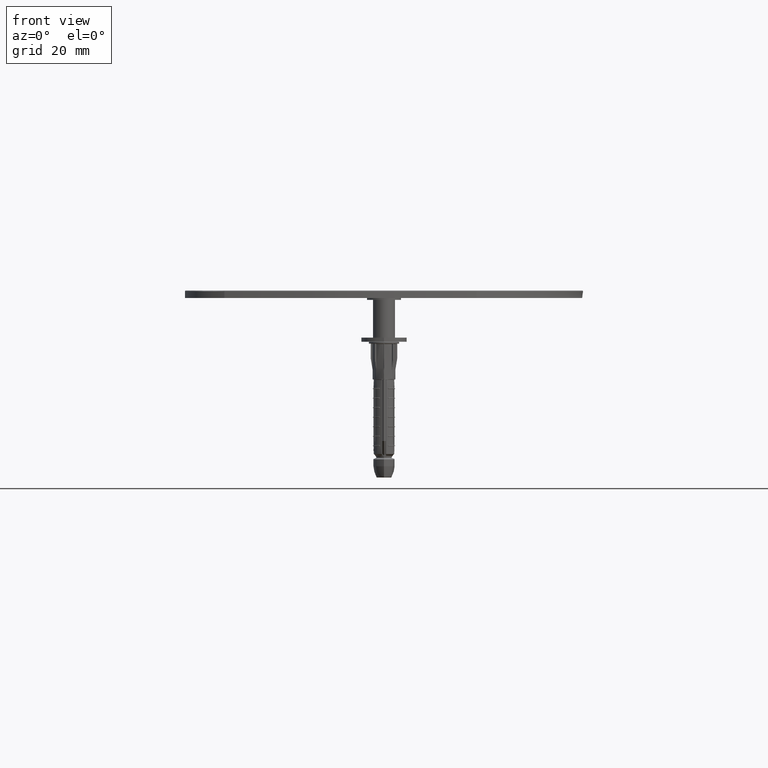
[diagram: clean part render]
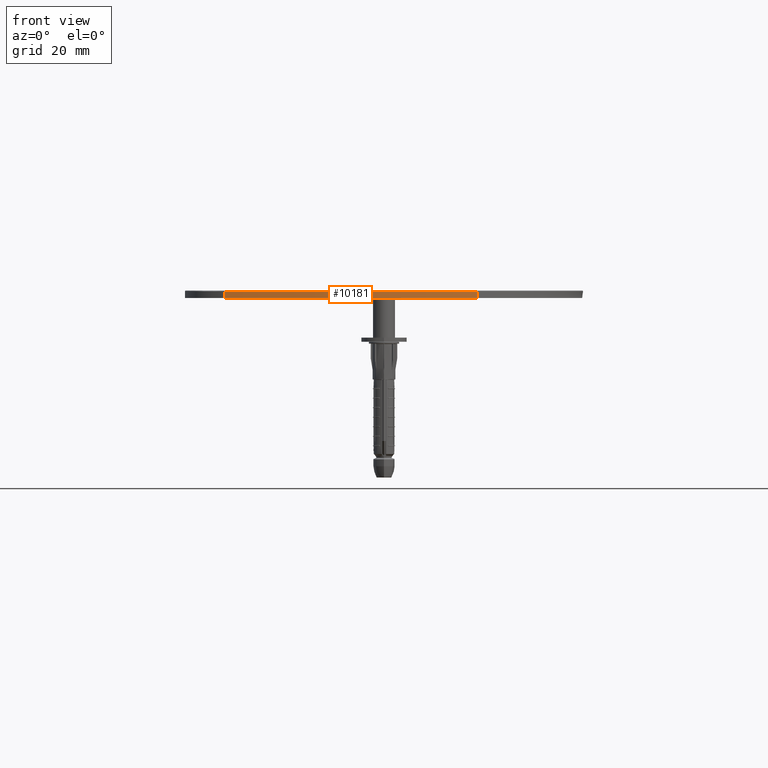
[diagram: same view with one face highlighted and labeled with its STEP entity id]
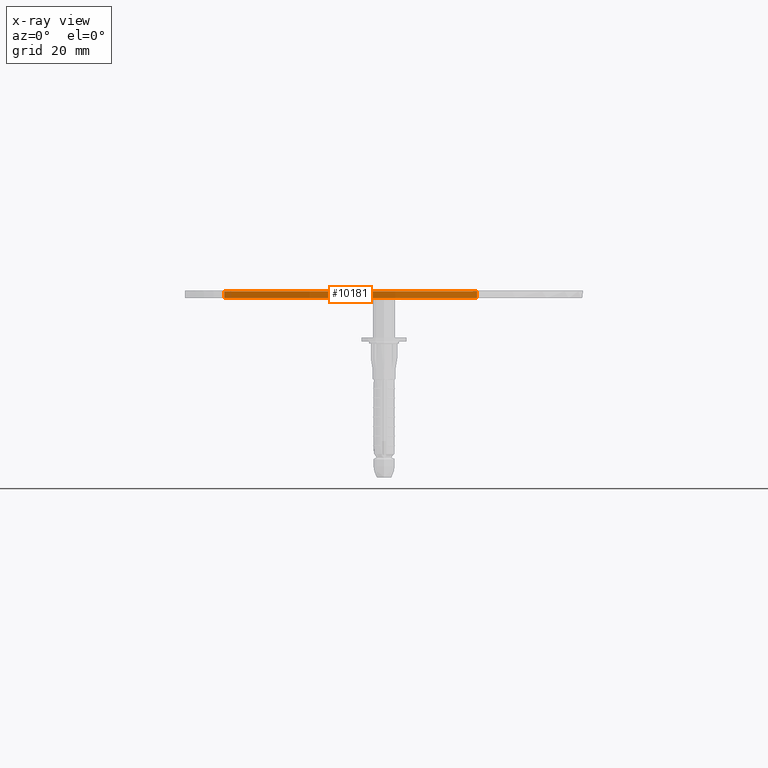
[diagram: x-ray of the same camera — body ghosted, the highlighted face saturated]
A machine part, front view. The second image highlights one B-rep face of the part: STEP entity #10181.
The next image is the same camera in x-ray: the body ghosted, the highlighted face saturated — about 0% of this face is hidden behind the body in this view.
In plain terms, the highlighted cylindrical surface (partial cylindrical patch) has radius 94 mm, axis along (-0, -0, -1).
Its self-contained STEP definition (entity closure, byte-faithful):
#11 = EDGE_CURVE ( 'NONE', #35638, #13629, #444, .T. ) ;
#444 = CIRCLE ( 'NONE', #16938, 94.00000000000000000 ) ;
#446 = CARTESIAN_POINT ( 'NONE',  ( -42.30100028659431644, 3.743003761364712467, 1.750000000000000000 ) ) ;
#1874 = EDGE_CURVE ( 'NONE', #13629, #38324, #10770, .T. ) ;
#2326 = AXIS2_PLACEMENT_3D ( 'NONE', #15039, #26995, #14899 ) ;
#3398 = EDGE_CURVE ( 'NONE', #38324, #29628, #33573, .T. ) ;
#4714 = CARTESIAN_POINT ( 'NONE',  ( 24.63163802406146630, 9.254078082211847800, 2.000000000000000000 ) ) ;
#6089 = LINE ( 'NONE', #4714, #24649 ) ;
#7244 = CARTESIAN_POINT ( 'NONE',  ( -42.30100028659431644, 3.743003761364712467, 2.000000000000000000 ) ) ;
#9501 = ORIENTED_EDGE ( 'NONE', *, *, #1874, .T. ) ;
#10181 = ADVANCED_FACE ( 'NONE', ( #14742 ), #14228, .T. ) ;
#10770 = LINE ( 'NONE', #7244, #29830 ) ;
#11013 = DIRECTION ( 'NONE',  ( -0.000000000000000000, -0.000000000000000000, -1.000000000000000000 ) ) ;
#11531 = EDGE_CURVE ( 'NONE', #35638, #29628, #6089, .T. ) ;
#13278 = DIRECTION ( 'NONE',  ( 0.000000000000000000, 0.000000000000000000, 1.000000000000000000 ) ) ;
#13629 = VERTEX_POINT ( 'NONE', #446 ) ;
#14228 = CYLINDRICAL_SURFACE ( 'NONE', #2326, 94.00000000000000000 ) ;
#14742 = FACE_OUTER_BOUND ( 'NONE', #22568, .T. ) ;
#14899 = DIRECTION ( 'NONE',  ( -1.000000000000000000, 0.000000000000000000, 0.000000000000000000 ) ) ;
#15039 = CARTESIAN_POINT ( 'NONE',  ( -16.03934325625869306, 94.00000000000000000, 2.000000000000000000 ) ) ;
#16938 = AXIS2_PLACEMENT_3D ( 'NONE', #29241, #11013, #32719 ) ;
#16989 = DIRECTION ( 'NONE',  ( -0.000000000000000000, -0.000000000000000000, -1.000000000000000000 ) ) ;
#18916 = CARTESIAN_POINT ( 'NONE',  ( -16.03934325625869306, 94.00000000000000000, 0.000000000000000000 ) ) ;
#19021 = ORIENTED_EDGE ( 'NONE', *, *, #11531, .F. ) ;
#22568 = EDGE_LOOP ( 'NONE', ( #19021, #38746, #9501, #30743 ) ) ;
#23369 = AXIS2_PLACEMENT_3D ( 'NONE', #18916, #13278, #25263 ) ;
#24649 = VECTOR ( 'NONE', #16989, 1000.000000000000000 ) ;
#25263 = DIRECTION ( 'NONE',  ( 1.000000000000000000, 0.000000000000000000, 0.000000000000000000 ) ) ;
#26995 = DIRECTION ( 'NONE',  ( -0.000000000000000000, -0.000000000000000000, -1.000000000000000000 ) ) ;
#29241 = CARTESIAN_POINT ( 'NONE',  ( -16.03934325625869306, 94.00000000000000000, 1.750000000000000000 ) ) ;
#29628 = VERTEX_POINT ( 'NONE', #32767 ) ;
#29830 = VECTOR ( 'NONE', #35224, 1000.000000000000000 ) ;
#30743 = ORIENTED_EDGE ( 'NONE', *, *, #3398, .T. ) ;
#32719 = DIRECTION ( 'NONE',  ( 1.000000000000000000, 0.000000000000000000, 0.000000000000000000 ) ) ;
#32767 = CARTESIAN_POINT ( 'NONE',  ( 24.63163802406146630, 9.254078082211847800, 0.000000000000000000 ) ) ;
#33573 = CIRCLE ( 'NONE', #23369, 94.00000000000000000 ) ;
#35224 = DIRECTION ( 'NONE',  ( -0.000000000000000000, -0.000000000000000000, -1.000000000000000000 ) ) ;
#35638 = VERTEX_POINT ( 'NONE', #37249 ) ;
#37248 = CARTESIAN_POINT ( 'NONE',  ( -42.30100028659431644, 3.743003761364712467, 0.000000000000000000 ) ) ;
#37249 = CARTESIAN_POINT ( 'NONE',  ( 24.63163802406146630, 9.254078082211847800, 1.750000000000000000 ) ) ;
#38324 = VERTEX_POINT ( 'NONE', #37248 ) ;
#38746 = ORIENTED_EDGE ( 'NONE', *, *, #11, .T. ) ;